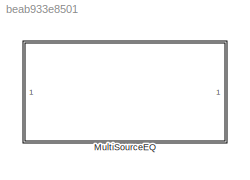
MODEL slx_beab933e8501
KIND library
CONFIG AbsTol = auto
CONFIG EnableMultiTasking = off
CONFIG FixedStep = auto
CONFIG MaxStep = auto
CONFIG MinStep = auto
CONFIG RelTol = 1e-3
CONFIG SampleTimeConstraint = Unconstrained
CONFIG SolverName = VariableStepAuto
CONFIG StartTime = 0.0
CONFIG StopTime = 10.0
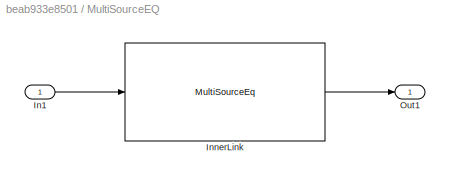
BLOCK [SubSystem] MultiSourceEQ
BLOCK [Inport] MultiSourceEQ/In1
BLOCK [Reference] MultiSourceEQ/InnerLink  REF=MultiSourceEqBtc/MultiSourceEq
  SourceBlock = MultiSourceEqBtc/MultiSourceEq
  SourceProductName = Bose Blocklib
  SourceType = Blocklib MultiSourceEq
BLOCK [Outport] MultiSourceEQ/Out1
LINE MultiSourceEQ/In1:1 -> MultiSourceEQ/InnerLink:1
LINE MultiSourceEQ/InnerLink:1 -> MultiSourceEQ/Out1:1
